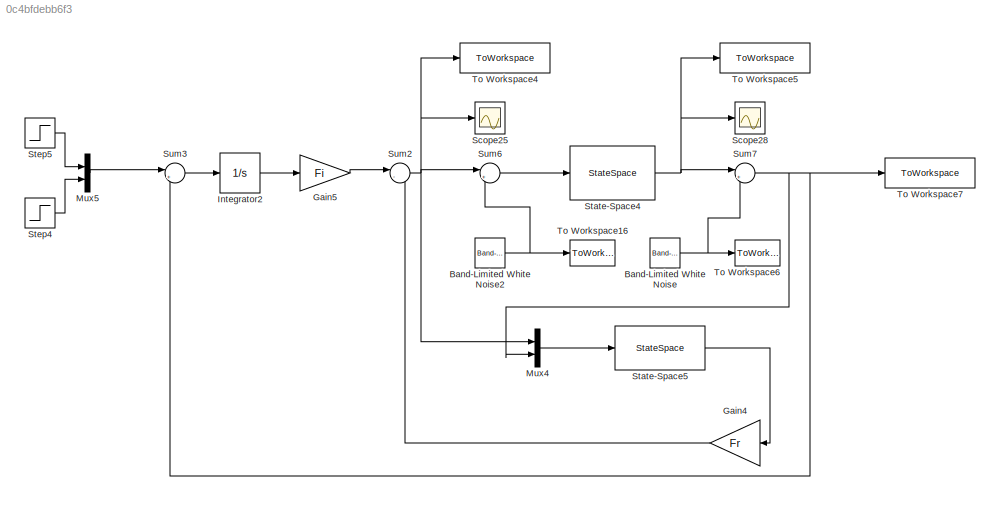
MODEL slx_0c4bfdebb6f3
KIND model
CONFIG AbsTol = auto
CONFIG EnableMultiTasking = off
CONFIG FixedStep = auto
CONFIG MaxStep = auto
CONFIG MinStep = auto
CONFIG RelTol = 1e-3
CONFIG SampleTimeConstraint = Unconstrained
CONFIG SolverName = VariableStepAuto
CONFIG StartTime = 0.0
CONFIG StopTime = 50
BLOCK [Reference] Band-Limited White Noise  REF=simulink/Sources/Band-Limited
White Noise
  SourceBlock = simulink/Sources/Band-Limited\nWhite Noise
  SourceType = Band-Limited White Noise.
BLOCK [Reference] Band-Limited White Noise2  REF=simulink/Sources/Band-Limited
White Noise
  SourceBlock = simulink/Sources/Band-Limited\nWhite Noise
  SourceType = Band-Limited White Noise.
BLOCK [Gain] Gain4
  Gain = Fr
  Multiplication = Matrix(K*u)
  NameLocation = top
BLOCK [Gain] Gain5
  Gain = Fi
  Multiplication = Matrix(K*u)
BLOCK [Integrator] Integrator2
BLOCK [Mux] Mux4
  DisplayOption = bar
  Inputs = 2
BLOCK [Mux] Mux5
  DisplayOption = bar
  Inputs = 2
BLOCK [Scope] Scope25
  Floating = off
  NumInputPorts = 1
  ScopeSpecificationString = Simulink.scopes.TimeScopeBlockCfg('CurrentConfiguration', extmgr.ConfigurationSet(extmgr.Configuration('Core','General UI',true),extmgr.Configuration('Core','Source UI',true),extmgr.Configuration('Sources','WiredSimulink',true,'DataLoggingVariableName','ScopeData1'),extmgr.Configuration('Visuals','Time Domain',true,'SerializedDisplays',{struct('MinYLimReal','-1.64827','MaxYLimReal','3.8808','YLabe...<+1537ch>
BLOCK [Scope] Scope28
  Floating = off
  NumInputPorts = 1
  ScopeSpecificationString = Simulink.scopes.TimeScopeBlockCfg('CurrentConfiguration', extmgr.ConfigurationSet(extmgr.Configuration('Core','General UI',true),extmgr.Configuration('Core','Source UI',true),extmgr.Configuration('Sources','WiredSimulink',true),extmgr.Configuration('Visuals','Time Domain',true,'SerializedDisplays',{struct('MinYLimReal','-0.31395','MaxYLimReal','2.82552','YLabelReal','','MinYLimMag','0.00000','MaxY...<+1382ch>
BLOCK [StateSpace] State-Space4
  A = A
  B = B
  C = C
  D = D
  InitialCondition = 0
  ParameterTunability = Unconstrained
BLOCK [StateSpace] State-Space5
  A = A_Kal
  B = B_Kal
  C = C_Kal
  D = D_Kal
  InitialCondition = 0
BLOCK [Step] Step4
  After = 2.5
  SampleTime = 0
  Time = 0
BLOCK [Step] Step5
  After = 2
  SampleTime = 0
  Time = 0
BLOCK [Sum] Sum2
  Inputs = |--
BLOCK [Sum] Sum3
  Inputs = |+-
BLOCK [Sum] Sum6
  Inputs = |++
BLOCK [Sum] Sum7
  Inputs = |++
BLOCK [ToWorkspace] To Workspace16
  FixptAsFi = on
  MaxDataPoints = inf
  SampleTime = -1
  SaveFormat = Structure With Time
  VariableName = Du
BLOCK [ToWorkspace] To Workspace4
  FixptAsFi = on
  MaxDataPoints = inf
  SampleTime = -1
  SaveFormat = Structure With Time
  VariableName = controlLQG_KAL
BLOCK [ToWorkspace] To Workspace5
  FixptAsFi = on
  MaxDataPoints = inf
  SampleTime = -1
  SaveFormat = Structure With Time
  VariableName = outputLQG_KAL
BLOCK [ToWorkspace] To Workspace6
  FixptAsFi = on
  MaxDataPoints = inf
  SampleTime = -1
  SaveFormat = Structure With Time
  VariableName = Dy
BLOCK [ToWorkspace] To Workspace7
  FixptAsFi = on
  MaxDataPoints = inf
  SampleTime = -1
  SaveFormat = Structure With Time
  VariableName = outputLQG_KAL_N
NET Band-Limited White Noise2:1 -> Sum6:2, To Workspace16:1
NET Band-Limited White Noise:1 -> Sum7:2, To Workspace6:1
LINE Gain4:1 -> Sum2:2
LINE Gain5:1 -> Sum2:1
LINE Integrator2:1 -> Gain5:1
LINE Mux4:1 -> State-Space5:1
LINE Mux5:1 -> Sum3:1
NET State-Space4:1 -> Scope28:1, Sum7:1, To Workspace5:1
LINE State-Space5:1 -> Gain4:1
LINE Step4:1 -> Mux5:2
LINE Step5:1 -> Mux5:1
NET Sum2:1 -> Mux4:1, Scope25:1, Sum6:1, To Workspace4:1
LINE Sum3:1 -> Integrator2:1
LINE Sum6:1 -> State-Space4:1
NET Sum7:1 -> Mux4:2, Sum3:2, To Workspace7:1
note: NET lines group one-source signal fan-out (src -> all destinations, sorted); 1:1 wires keep LINE
